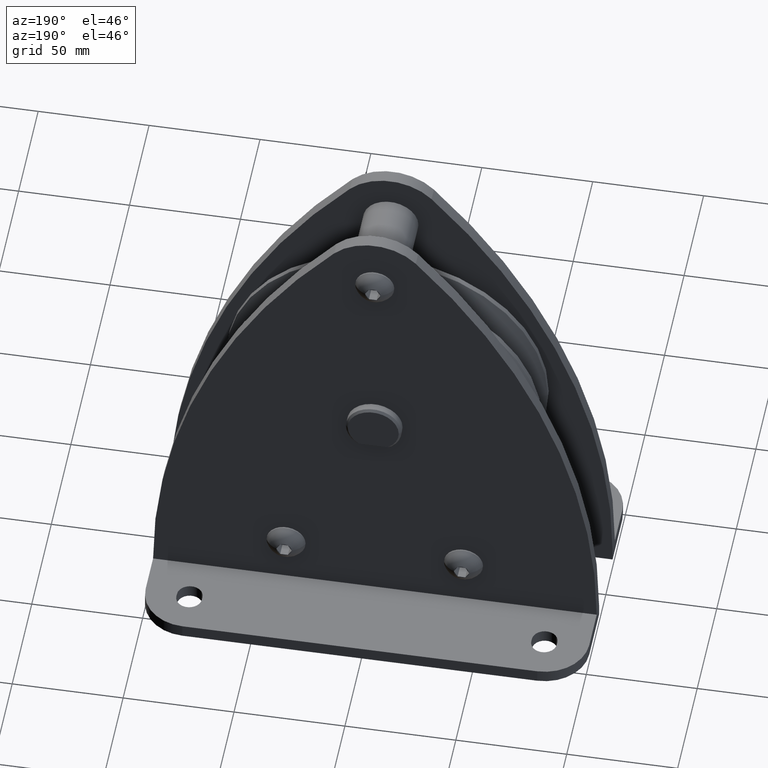
[diagram: clean part render]
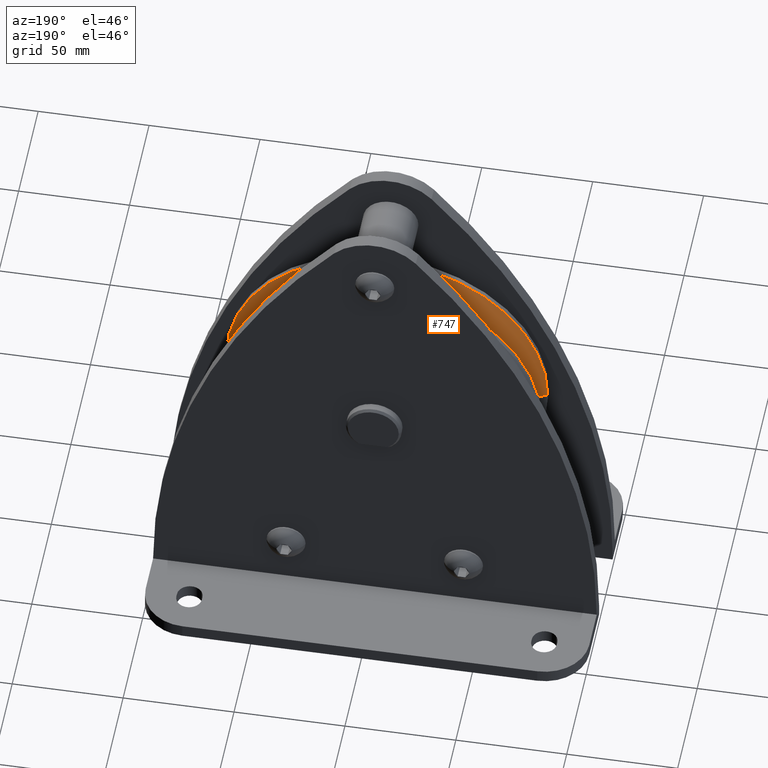
[diagram: same view with one face highlighted and labeled with its STEP entity id]
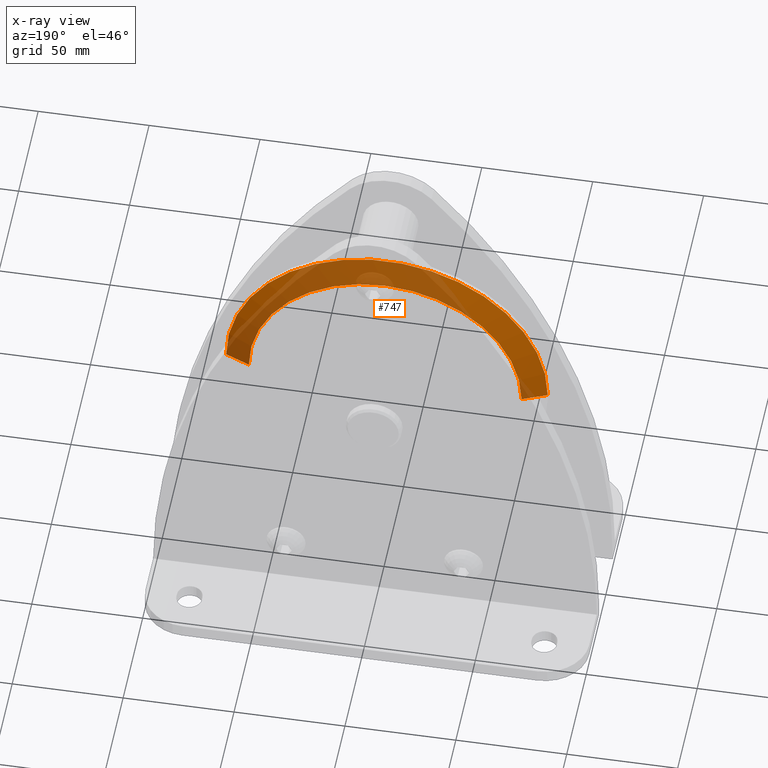
[diagram: x-ray of the same camera — body ghosted, the highlighted face saturated]
A machine part, auxiliary view. The second image highlights one B-rep face of the part: STEP entity #747.
The next image is the same camera in x-ray: the body ghosted, the highlighted face saturated — about 58% of this face is hidden behind the body in this view.
In plain terms, the highlighted conical surface has half-angle 67.5 deg.
Its self-contained STEP definition (entity closure, byte-faithful):
#747=ADVANCED_FACE('',(#2128),#2129,.T.);
#2128=FACE_OUTER_BOUND('',#4234,.T.);
#2129=CONICAL_SURFACE('',#4235,66.98770651,1.17809724483896);
#4234=EDGE_LOOP('',(#6493,#6494,#6495,#6496));
#4235=AXIS2_PLACEMENT_3D('',#6497,#6498,#6499);
#6493=ORIENTED_EDGE('',*,*,#12714,.F.);
#6494=ORIENTED_EDGE('',*,*,#12562,.T.);
#6495=ORIENTED_EDGE('',*,*,#12715,.F.);
#6496=ORIENTED_EDGE('',*,*,#12716,.F.);
#6497=CARTESIAN_POINT('',(0.0,-5.239681225,0.0));
#6498=DIRECTION('',(-0.0,-1.0,0.0));
#6499=DIRECTION('',(1.0,0.0,0.0));
#12562=EDGE_CURVE('',#15051,#15049,#15052,.T.);
#12714=EDGE_CURVE('',#15051,#15322,#15323,.T.);
#12715=EDGE_CURVE('',#15324,#15049,#15325,.T.);
#12716=EDGE_CURVE('',#15322,#15324,#15326,.T.);
#15049=VERTEX_POINT('',#18731);
#15051=VERTEX_POINT('',#18733);
#15052=CIRCLE('',#18734,61.47541302);
#15322=VERTEX_POINT('',#19774);
#15323=LINE('',#19775,#19776);
#15324=VERTEX_POINT('',#19777);
#15325=LINE('',#19778,#19779);
#15326=CIRCLE('',#19780,72.5);
#18731=CARTESIAN_POINT('',(-61.47541302,-2.9564145,7.52856677812045E-015));
#18733=CARTESIAN_POINT('',(61.47541302,-2.9564145,0.0));
#18734=AXIS2_PLACEMENT_3D('',#26640,#26641,#26642);
#19774=CARTESIAN_POINT('',(72.5,-7.52294795,0.0));
#19775=CARTESIAN_POINT('',(66.98770651,-5.239681225,-8.20362803596938E-015));
#19776=VECTOR('',#26841,1.0);
#19777=CARTESIAN_POINT('',(-72.5,-7.52294795,8.87868929381831E-015));
#19778=CARTESIAN_POINT('',(-66.98770651,-5.239681225,8.20362803596938E-015));
#19779=VECTOR('',#26842,1.0);
#19780=AXIS2_PLACEMENT_3D('',#26843,#26844,#26845);
#26640=CARTESIAN_POINT('',(0.0,-2.9564145,0.0));
#26641=DIRECTION('',(0.0,-1.0,0.0));
#26642=DIRECTION('',(1.0,0.0,0.0));
#26841=DIRECTION('',(0.923879532412857,-0.382683432602721,-1.13142611216716E-016));
#26842=DIRECTION('',(0.923879532412857,0.382683432602721,-1.13142611216716E-016));
#26843=CARTESIAN_POINT('',(0.0,-7.52294795,0.0));
#26844=DIRECTION('',(0.0,-1.0,0.0));
#26845=DIRECTION('',(1.0,0.0,0.0));